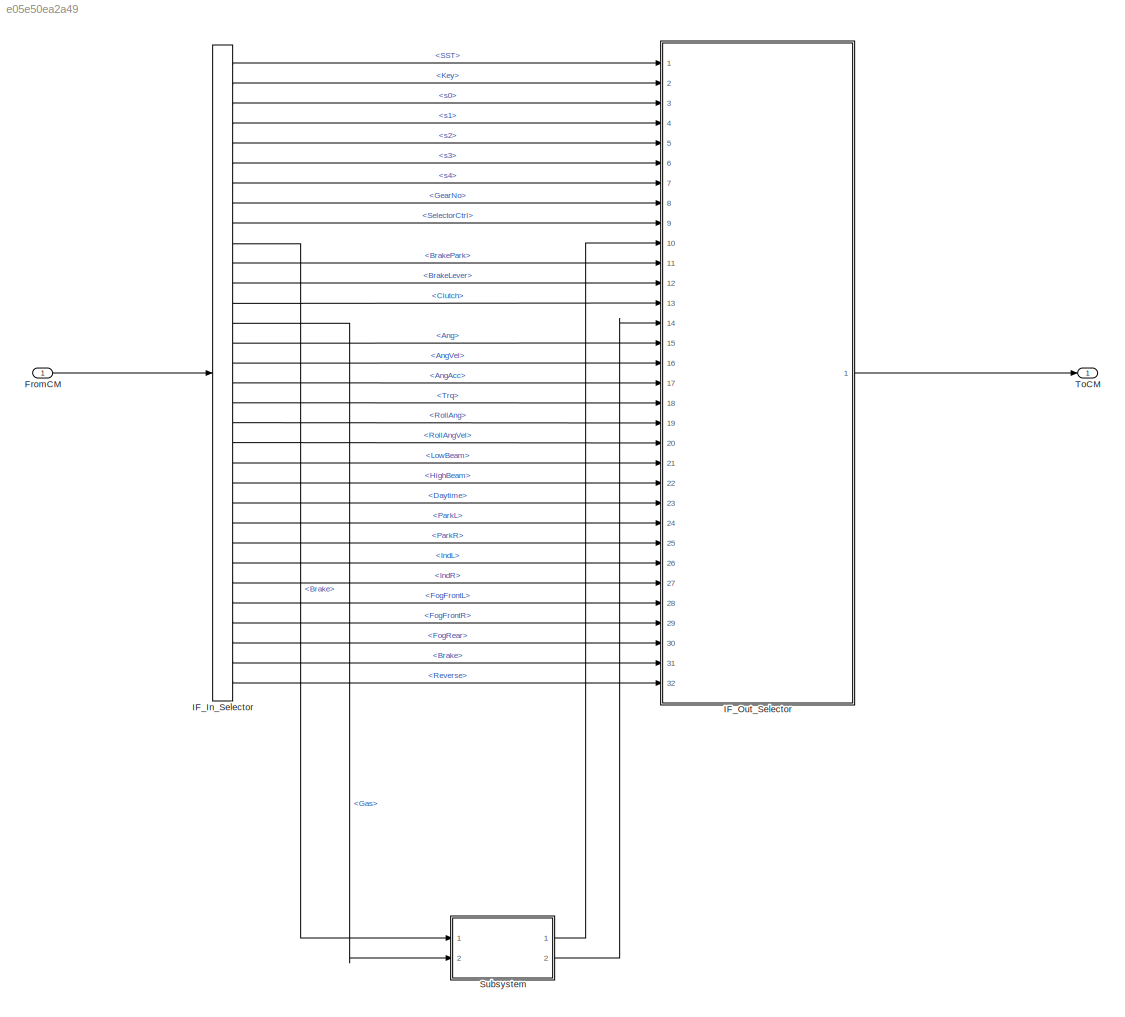
MODEL slx_e05e50ea2a49
KIND model
CONFIG AbsTol = auto
CONFIG EnableMultiTasking = off
CONFIG FixedStep = 0.001
CONFIG InitFcn = vehicle = 'Car'; if ~length(which('cmself')), cmenv; end\nBosch_VhclCtrl_AEB_bus
CONFIG MaxStep = auto
CONFIG MinStep = auto
CONFIG PreLoadFcn = vehicle = 'Car'; if ~length(which('cmself')), cmenv; end\nBosch_VhclCtrl_AEB_bus
CONFIG RelTol = 1e-3
CONFIG SampleTimeConstraint = Unconstrained
CONFIG SolverName = ode1
CONFIG StartTime = 0.0
CONFIG StopTime = inf
WORKSPACE source: mxarray member
WORKSPACE CritThreshold = 0.8
BLOCK [Inport] FromCM
  OutDataTypeStr = Bus: cmVehicleControlIn
BLOCK [BusSelector] IF_In_Selector
  OutputSignals = SST,Key,UserSignal.s0,UserSignal.s1,UserSignal.s2,UserSignal.s3,UserSignal.s4,GearNo,SelectorCtrl,Brake,BrakePark,BrakeLever,Clutch,Gas,Steering.Ang,Steering.AngVel,Steering.AngAcc,Steering.Trq,Rider.RollAng,Rider.RollAngVel,Lights.LowBeam,Lights.HighBeam,Lights.Daytime,Lights.ParkL,Lights.ParkR,Lights.IndL,Lights.IndR,Lights.FogFrontL,Lights.FogFrontR,Lights.FogRear,Lights.Brake,Lights.Reverse
  Ports = [1, 32]
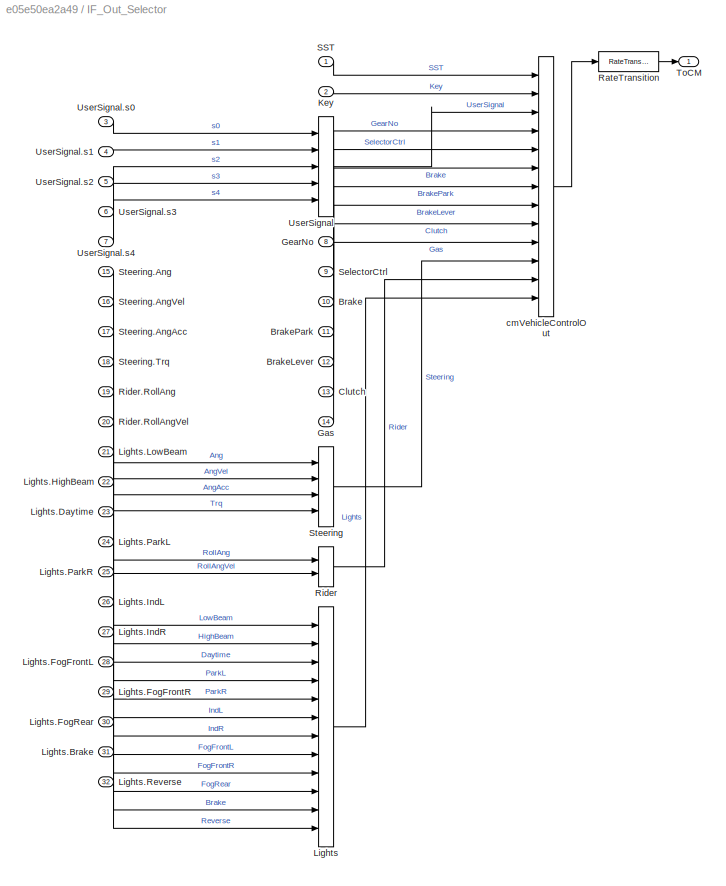
BLOCK [SubSystem] IF_Out_Selector
  OpenFcn = cmSignalSelect('SignalSelection_CB',gcb)
  Ports = [32, 1]
  RequestExecContextInheritance = off
  UserDataPersistent = on
BLOCK [Inport] IF_Out_Selector/Brake
  Port = 10
BLOCK [Inport] IF_Out_Selector/BrakeLever
  Port = 12
BLOCK [Inport] IF_Out_Selector/BrakePark
  Port = 11
BLOCK [Inport] IF_Out_Selector/Clutch
  Port = 13
BLOCK [Inport] IF_Out_Selector/Gas
  Port = 14
BLOCK [Inport] IF_Out_Selector/GearNo
  Port = 8
BLOCK [Inport] IF_Out_Selector/Key
  Port = 2
BLOCK [BusCreator] IF_Out_Selector/Lights
  InheritFromInputs = on
  Inputs = 12
  Ports = [12, 1]
BLOCK [Inport] IF_Out_Selector/Lights.Brake
  Port = 31
BLOCK [Inport] IF_Out_Selector/Lights.Daytime
  Port = 23
BLOCK [Inport] IF_Out_Selector/Lights.FogFrontL
  Port = 28
BLOCK [Inport] IF_Out_Selector/Lights.FogFrontR
  Port = 29
BLOCK [Inport] IF_Out_Selector/Lights.FogRear
  Port = 30
BLOCK [Inport] IF_Out_Selector/Lights.HighBeam
  Port = 22
BLOCK [Inport] IF_Out_Selector/Lights.IndL
  Port = 26
BLOCK [Inport] IF_Out_Selector/Lights.IndR
  Port = 27
BLOCK [Inport] IF_Out_Selector/Lights.LowBeam
  Port = 21
BLOCK [Inport] IF_Out_Selector/Lights.ParkL
  Port = 24
BLOCK [Inport] IF_Out_Selector/Lights.ParkR
  Port = 25
BLOCK [Inport] IF_Out_Selector/Lights.Reverse
  Port = 32
BLOCK [RateTransition] IF_Out_Selector/RateTransition
  OutPortSampleTime = str2num(get_param(bdroot,'FixedStep'))
BLOCK [BusCreator] IF_Out_Selector/Rider
  InheritFromInputs = on
  Inputs = 2
  Ports = [2, 1]
BLOCK [Inport] IF_Out_Selector/Rider.RollAng
  Port = 19
BLOCK [Inport] IF_Out_Selector/Rider.RollAngVel
  Port = 20
BLOCK [Inport] IF_Out_Selector/SST
BLOCK [Inport] IF_Out_Selector/SelectorCtrl
  Port = 9
BLOCK [BusCreator] IF_Out_Selector/Steering
  InheritFromInputs = on
  Inputs = 4
  Ports = [4, 1]
BLOCK [Inport] IF_Out_Selector/Steering.Ang
  Port = 15
BLOCK [Inport] IF_Out_Selector/Steering.AngAcc
  Port = 17
BLOCK [Inport] IF_Out_Selector/Steering.AngVel
  Port = 16
BLOCK [Inport] IF_Out_Selector/Steering.Trq
  Port = 18
BLOCK [Outport] IF_Out_Selector/ToCM
BLOCK [BusCreator] IF_Out_Selector/UserSignal
  InheritFromInputs = on
  Inputs = 5
  Ports = [5, 1]
BLOCK [Inport] IF_Out_Selector/UserSignal.s0
  Port = 3
BLOCK [Inport] IF_Out_Selector/UserSignal.s1
  Port = 4
BLOCK [Inport] IF_Out_Selector/UserSignal.s2
  Port = 5
BLOCK [Inport] IF_Out_Selector/UserSignal.s3
  Port = 6
BLOCK [Inport] IF_Out_Selector/UserSignal.s4
  Port = 7
BLOCK [BusCreator] IF_Out_Selector/cmVehicleControlOut
  InheritFromInputs = on
  Inputs = 13
  Ports = [13, 1]
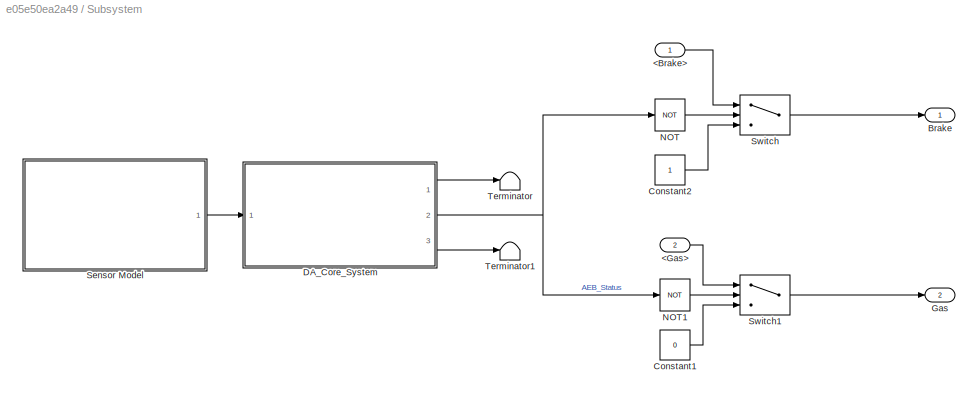
BLOCK [SubSystem] Subsystem
  Ports = [2, 2]
  RequestExecContextInheritance = off
BLOCK [Inport] Subsystem/<Brake>
BLOCK [Inport] Subsystem/<Gas>
  Port = 2
BLOCK [Outport] Subsystem/Brake
BLOCK [Constant] Subsystem/Constant1
  Value = 0
BLOCK [Constant] Subsystem/Constant2
BLOCK [SubSystem] Subsystem/DA_Core_System
  Ports = [1, 3]
  ReferencedSubsystem = DA_CoreSystem
  RequestExecContextInheritance = off
BLOCK [Outport] Subsystem/Gas
  Port = 2
BLOCK [Logic] Subsystem/NOT
  AllPortsSameDT = off
  IconShape = distinctive
  Operator = NOT
  OutDataTypeStr = boolean
  Ports = [1, 1]
BLOCK [Logic] Subsystem/NOT1
  AllPortsSameDT = off
  IconShape = distinctive
  Operator = NOT
  OutDataTypeStr = boolean
  Ports = [1, 1]
BLOCK [SubSystem] Subsystem/Sensor Model
  Ports = [0, 1]
  ReferencedSubsystem = Sensor_Model_3V_1O
  RequestExecContextInheritance = off
BLOCK [Switch] Subsystem/Switch
  Criteria = u2 > Threshold
  InputSameDT = off
  OutDataTypeStr = Inherit: Same as first input
  SaturateOnIntegerOverflow = off
BLOCK [Switch] Subsystem/Switch1
  Criteria = u2 > Threshold
  InputSameDT = off
  SaturateOnIntegerOverflow = off
BLOCK [Terminator] Subsystem/Terminator
BLOCK [Terminator] Subsystem/Terminator1
BLOCK [Outport] ToCM
  OutDataTypeStr = Bus: cmVehicleControlOut
LINE FromCM:1 -> IF_In_Selector:1
LINE IF_In_Selector:1 -> IF_Out_Selector:1
LINE IF_In_Selector:10 -> Subsystem:1
LINE IF_In_Selector:11 -> IF_Out_Selector:11
LINE IF_In_Selector:12 -> IF_Out_Selector:12
LINE IF_In_Selector:13 -> IF_Out_Selector:13
LINE IF_In_Selector:14 -> Subsystem:2
LINE IF_In_Selector:15 -> IF_Out_Selector:15
LINE IF_In_Selector:16 -> IF_Out_Selector:16
LINE IF_In_Selector:17 -> IF_Out_Selector:17
LINE IF_In_Selector:18 -> IF_Out_Selector:18
LINE IF_In_Selector:19 -> IF_Out_Selector:19
LINE IF_In_Selector:2 -> IF_Out_Selector:2
LINE IF_In_Selector:20 -> IF_Out_Selector:20
LINE IF_In_Selector:21 -> IF_Out_Selector:21
LINE IF_In_Selector:22 -> IF_Out_Selector:22
LINE IF_In_Selector:23 -> IF_Out_Selector:23
LINE IF_In_Selector:24 -> IF_Out_Selector:24
LINE IF_In_Selector:25 -> IF_Out_Selector:25
LINE IF_In_Selector:26 -> IF_Out_Selector:26
LINE IF_In_Selector:27 -> IF_Out_Selector:27
LINE IF_In_Selector:28 -> IF_Out_Selector:28
LINE IF_In_Selector:29 -> IF_Out_Selector:29
LINE IF_In_Selector:3 -> IF_Out_Selector:3
LINE IF_In_Selector:30 -> IF_Out_Selector:30
LINE IF_In_Selector:31 -> IF_Out_Selector:31
LINE IF_In_Selector:32 -> IF_Out_Selector:32
LINE IF_In_Selector:4 -> IF_Out_Selector:4
LINE IF_In_Selector:5 -> IF_Out_Selector:5
LINE IF_In_Selector:6 -> IF_Out_Selector:6
LINE IF_In_Selector:7 -> IF_Out_Selector:7
LINE IF_In_Selector:8 -> IF_Out_Selector:8
LINE IF_In_Selector:9 -> IF_Out_Selector:9
LINE IF_Out_Selector/Brake:1 -> IF_Out_Selector/cmVehicleControlOut:6
LINE IF_Out_Selector/BrakeLever:1 -> IF_Out_Selector/cmVehicleControlOut:8
LINE IF_Out_Selector/BrakePark:1 -> IF_Out_Selector/cmVehicleControlOut:7
LINE IF_Out_Selector/Clutch:1 -> IF_Out_Selector/cmVehicleControlOut:9
LINE IF_Out_Selector/Gas:1 -> IF_Out_Selector/cmVehicleControlOut:10
LINE IF_Out_Selector/GearNo:1 -> IF_Out_Selector/cmVehicleControlOut:4
LINE IF_Out_Selector/Key:1 -> IF_Out_Selector/cmVehicleControlOut:2
LINE IF_Out_Selector/Lights.Brake:1 -> IF_Out_Selector/Lights:11
LINE IF_Out_Selector/Lights.Daytime:1 -> IF_Out_Selector/Lights:3
LINE IF_Out_Selector/Lights.FogFrontL:1 -> IF_Out_Selector/Lights:8
LINE IF_Out_Selector/Lights.FogFrontR:1 -> IF_Out_Selector/Lights:9
LINE IF_Out_Selector/Lights.FogRear:1 -> IF_Out_Selector/Lights:10
LINE IF_Out_Selector/Lights.HighBeam:1 -> IF_Out_Selector/Lights:2
LINE IF_Out_Selector/Lights.IndL:1 -> IF_Out_Selector/Lights:6
LINE IF_Out_Selector/Lights.IndR:1 -> IF_Out_Selector/Lights:7
LINE IF_Out_Selector/Lights.LowBeam:1 -> IF_Out_Selector/Lights:1
LINE IF_Out_Selector/Lights.ParkL:1 -> IF_Out_Selector/Lights:4
LINE IF_Out_Selector/Lights.ParkR:1 -> IF_Out_Selector/Lights:5
LINE IF_Out_Selector/Lights.Reverse:1 -> IF_Out_Selector/Lights:12
LINE IF_Out_Selector/Lights:1 -> IF_Out_Selector/cmVehicleControlOut:13
LINE IF_Out_Selector/RateTransition:1 -> IF_Out_Selector/ToCM:1
LINE IF_Out_Selector/Rider.RollAng:1 -> IF_Out_Selector/Rider:1
LINE IF_Out_Selector/Rider.RollAngVel:1 -> IF_Out_Selector/Rider:2
LINE IF_Out_Selector/Rider:1 -> IF_Out_Selector/cmVehicleControlOut:12
LINE IF_Out_Selector/SST:1 -> IF_Out_Selector/cmVehicleControlOut:1
LINE IF_Out_Selector/SelectorCtrl:1 -> IF_Out_Selector/cmVehicleControlOut:5
LINE IF_Out_Selector/Steering.Ang:1 -> IF_Out_Selector/Steering:1
LINE IF_Out_Selector/Steering.AngAcc:1 -> IF_Out_Selector/Steering:3
LINE IF_Out_Selector/Steering.AngVel:1 -> IF_Out_Selector/Steering:2
LINE IF_Out_Selector/Steering.Trq:1 -> IF_Out_Selector/Steering:4
LINE IF_Out_Selector/Steering:1 -> IF_Out_Selector/cmVehicleControlOut:11
LINE IF_Out_Selector/UserSignal.s0:1 -> IF_Out_Selector/UserSignal:1
LINE IF_Out_Selector/UserSignal.s1:1 -> IF_Out_Selector/UserSignal:2
LINE IF_Out_Selector/UserSignal.s2:1 -> IF_Out_Selector/UserSignal:3
LINE IF_Out_Selector/UserSignal.s3:1 -> IF_Out_Selector/UserSignal:4
LINE IF_Out_Selector/UserSignal.s4:1 -> IF_Out_Selector/UserSignal:5
LINE IF_Out_Selector/UserSignal:1 -> IF_Out_Selector/cmVehicleControlOut:3
LINE IF_Out_Selector/cmVehicleControlOut:1 -> IF_Out_Selector/RateTransition:1
LINE IF_Out_Selector:1 -> ToCM:1
LINE Subsystem/<Brake>:1 -> Subsystem/Switch:1
LINE Subsystem/<Gas>:1 -> Subsystem/Switch1:1
LINE Subsystem/Constant1:1 -> Subsystem/Switch1:3
LINE Subsystem/Constant2:1 -> Subsystem/Switch:3
LINE Subsystem/DA_Core_System:1 -> Subsystem/Terminator:1
NET Subsystem/DA_Core_System:2 -> Subsystem/NOT1:1, Subsystem/NOT:1
LINE Subsystem/DA_Core_System:3 -> Subsystem/Terminator1:1
LINE Subsystem/NOT1:1 -> Subsystem/Switch1:2
LINE Subsystem/NOT:1 -> Subsystem/Switch:2
LINE Subsystem/Sensor Model:1 -> Subsystem/DA_Core_System:1
LINE Subsystem/Switch1:1 -> Subsystem/Gas:1
LINE Subsystem/Switch:1 -> Subsystem/Brake:1
LINE Subsystem:1 -> IF_Out_Selector:10
LINE Subsystem:2 -> IF_Out_Selector:14
note: NET lines group one-source signal fan-out (src -> all destinations, sorted); 1:1 wires keep LINE
